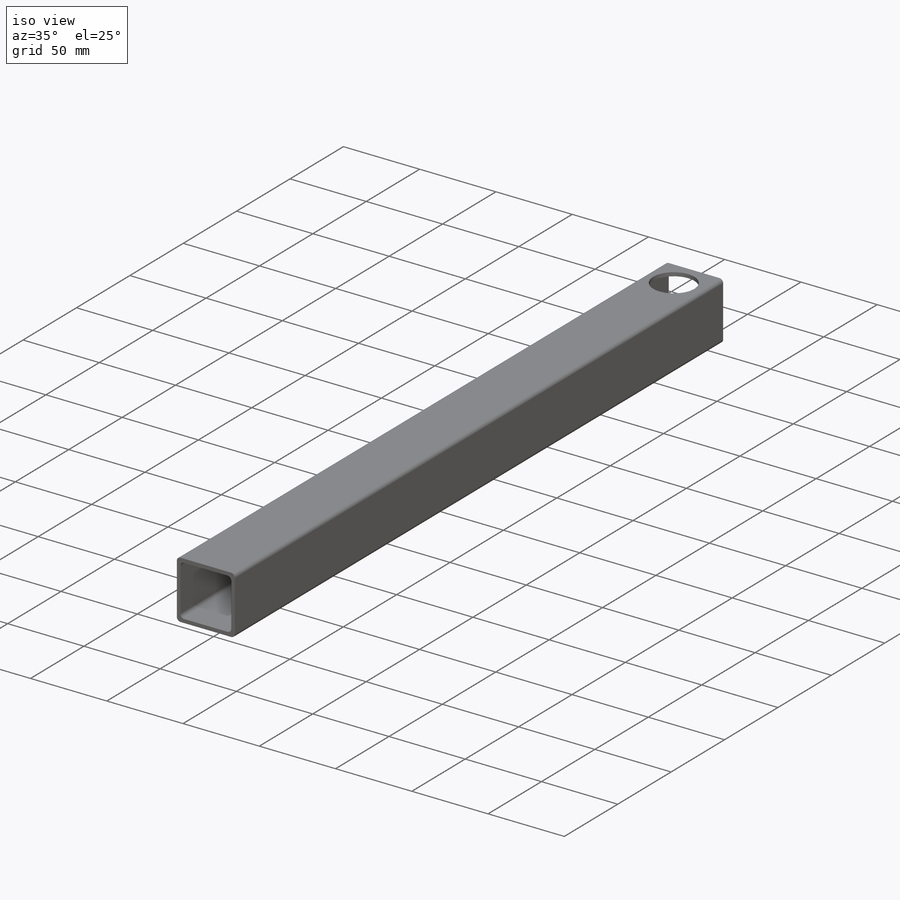
[diagram: iso view]
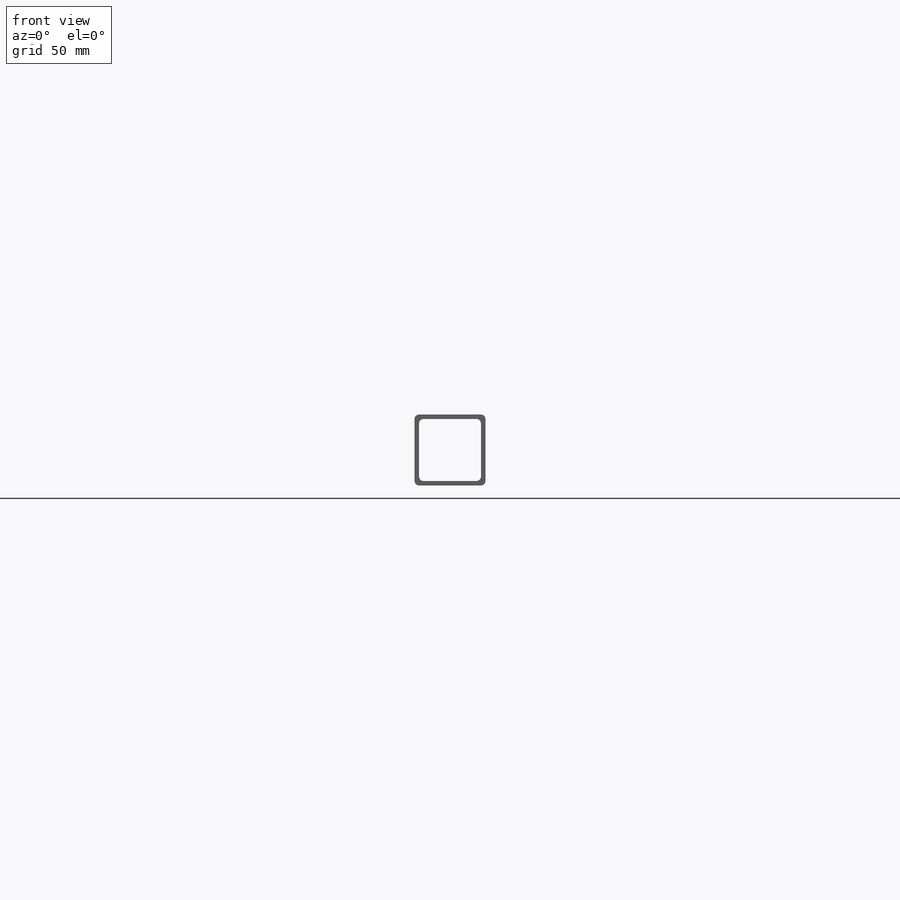
[diagram: front view]
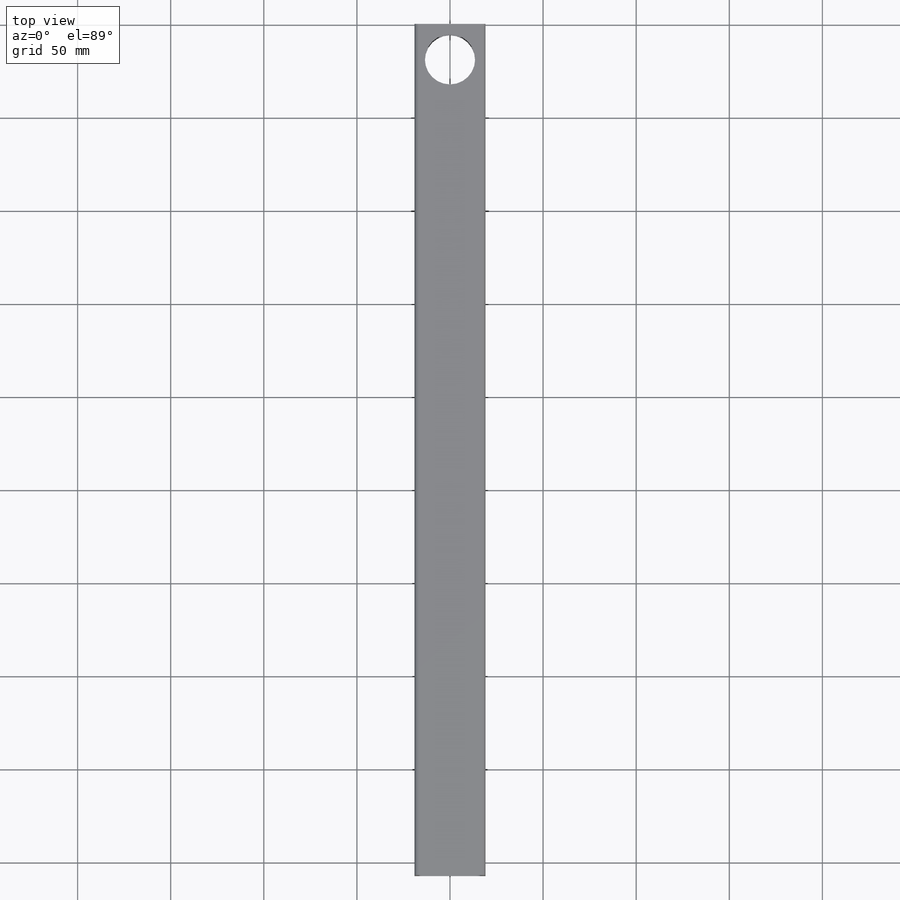
[diagram: top view]
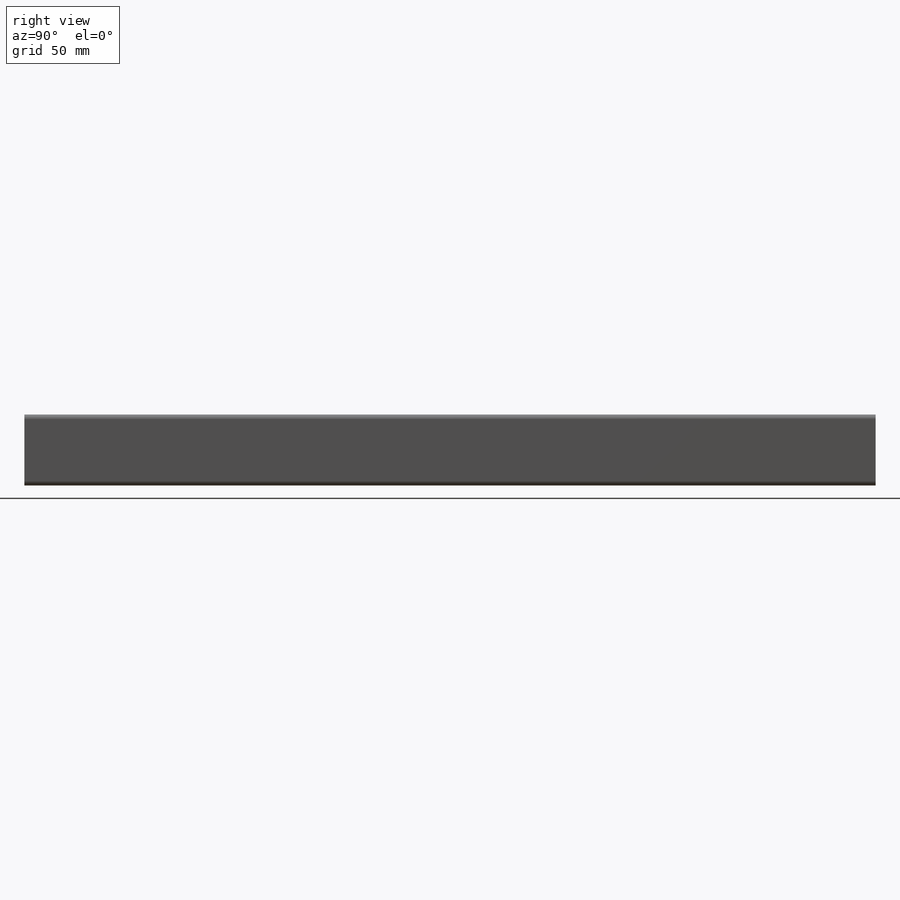
[diagram: right view]
SOLIDWORKS PART (.sldprt)
format: sldprt  version: not decoded by parser v0  size: 199,680 bytes
history: native  units: mm
features: sketch x3, material x1, extrude x1, cut_extrude x1 (+11 scaffold rows collapsed)
feature tree (17):
  scaffold x11  (default folders/planes/origin — collapsed)
  material  "ASTM A36 Steel"
  sketch  "Sketch1"  dims[c1.CurrentVersion=0.0mm c1.EditFunction=0.0mm c1.Type=0.0mm c1.SubType=0.0mm c1.Application=0.0mm c2.CurrentVersion=0.0mm c2.EditFunction=0.0mm c2.Type=0.0mm c2.SubType=0.0mm c2.STANDARD=0.0mm c2.TYPE=0.0mm c2.SIZE=0.0mm]
  sketch  "CimSteelSettings6.1"  dims[c1.STANDARD=0.0mm c1.TYPE=0.0mm c1.SIZE=0.0mm c1.D1=6.35mm c1.D2=6.35mm c1.D3=6.35mm c1.D4=6.35mm c1.D5=6.35mm c1.D6=6.35mm c1.D7=6.35mm c1.D8=6.35mm c2.D1=6.604mm c2.D2=6.604mm c2.D3=6.604mm c2.D4=6.604mm c3.D1=2.413mm c3.D2=2.413mm c3.D3=2.413mm c3.D4=12.9032mm c3.D5=12.9286mm c3.D6=2.413mm c3.D7=38.1mm c3.D8=38.1mm c4.D4=50.3428mm c4.D5=50.8508mm c5.D4=38.1mm c5.D5=38.1mm c6.D4=2.413mm c6.D5=2.413mm]
  extrude  "Boss-Extrude1"  Depth=457.2mm
  sketch  "Sketch2"  dims[D1=26.9875mm D2=19.05mm]
  cut_extrude  "Cut-Extrude1"  Depth=457.2mm
decode coverage: 5 of 5 modeling features carry decoded parameters
note: suppression state not decoded; provenance and decode notes live in map.json
